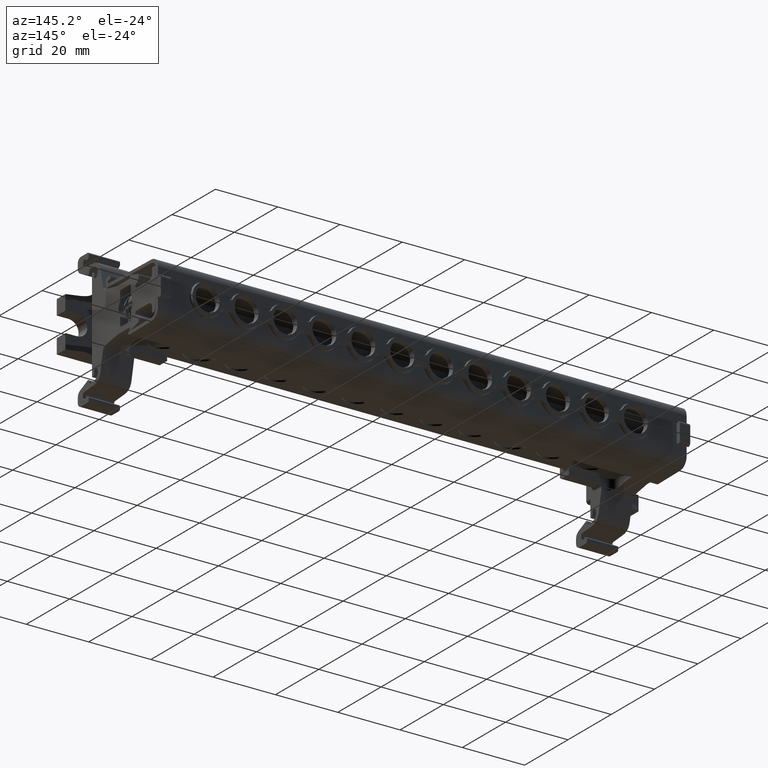
[diagram: clean part render]
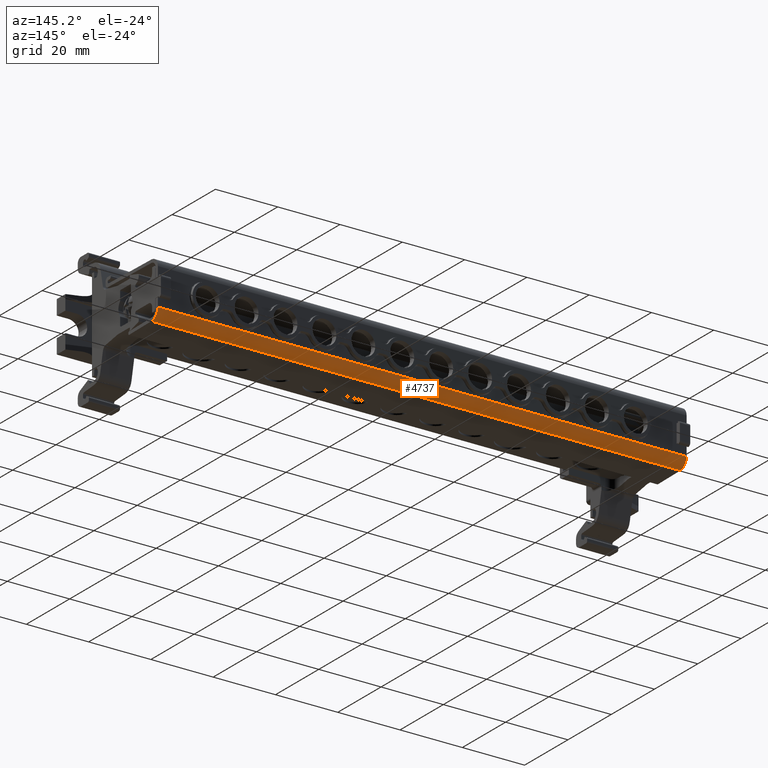
[diagram: same view with one face highlighted and labeled with its STEP entity id]
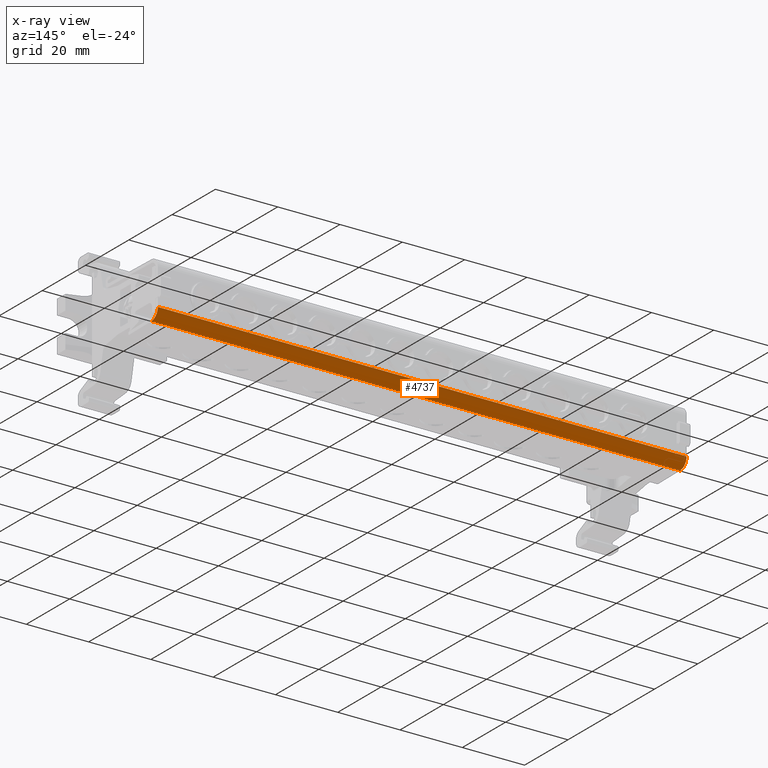
[diagram: x-ray of the same camera — body ghosted, the highlighted face saturated]
A machine part, auxiliary view. The second image highlights one B-rep face of the part: STEP entity #4737.
The next image is the same camera in x-ray: the body ghosted, the highlighted face saturated — about 0% of this face is hidden behind the body in this view.
In plain terms, the highlighted cylindrical surface (edge-blend (fillet) strip) has radius 3 mm, axis along (-1, 0, 0).
Its self-contained STEP definition (entity closure, byte-faithful):
#1128 = EDGE_LOOP ( 'NONE', ( #15021, #15057, #15046, #15062 ) ) ;
#3368 = FACE_OUTER_BOUND ( 'NONE', #1128, .T. ) ;
#3371 = DIRECTION ( 'NONE',  ( -1.000000000000000000, 7.897574933814930700E-015, 3.853197141484226100E-015 ) ) ;
#3380 = DIRECTION ( 'NONE',  ( 4.047688110612550100E-015, -6.107034461466653900E-007, 0.9999999999998134800 ) ) ;
#3394 = CARTESIAN_POINT ( 'NONE',  ( -12.35269769582561700, 71.21282648293207300, 32.27424889606233200 ) ) ;
#3422 = CYLINDRICAL_SURFACE ( 'NONE', #28068, 3.000000000000000000 ) ;
#4737 = ADVANCED_FACE ( 'NONE', ( #3368 ), #3422, .T. ) ;
#7003 = EDGE_CURVE ( 'NONE', #9658, #9677, #8601, .T. ) ;
#7043 = EDGE_CURVE ( 'NONE', #9662, #9693, #8851, .T. ) ;
#8601 = LINE ( 'NONE', #8603, #24884 ) ;
#8603 = CARTESIAN_POINT ( 'NONE',  ( -12.35269769582556900, 74.21282648293207300, 32.27424889606238200 ) ) ;
#8647 = DIRECTION ( 'NONE',  ( -1.000000000000000000, 7.897574933814930700E-015, 3.853197141484226100E-015 ) ) ;
#8836 = DIRECTION ( 'NONE',  ( -1.000000000000000000, 7.897574933814930700E-015, 3.853197141484226100E-015 ) ) ;
#8851 = LINE ( 'NONE', #8869, #24347 ) ;
#8869 = CARTESIAN_POINT ( 'NONE',  ( -12.35269769582561700, 71.26518496709265100, 29.27470583267154000 ) ) ;
#9658 = VERTEX_POINT ( 'NONE', #16880 ) ;
#9662 = VERTEX_POINT ( 'NONE', #16919 ) ;
#9677 = VERTEX_POINT ( 'NONE', #16896 ) ;
#9693 = VERTEX_POINT ( 'NONE', #16866 ) ;
#12134 = EDGE_CURVE ( 'NONE', #9693, #9677, #34550, .T. ) ;
#12199 = EDGE_CURVE ( 'NONE', #9662, #9658, #24151, .T. ) ;
#15021 = ORIENTED_EDGE ( 'NONE', *, *, #7003, .F. ) ;
#15046 = ORIENTED_EDGE ( 'NONE', *, *, #7043, .T. ) ;
#15057 = ORIENTED_EDGE ( 'NONE', *, *, #12199, .F. ) ;
#15062 = ORIENTED_EDGE ( 'NONE', *, *, #12134, .T. ) ;
#16866 = CARTESIAN_POINT ( 'NONE',  ( -124.8476976958256000, 71.26518496709354600, 29.27470583267197300 ) ) ;
#16880 = CARTESIAN_POINT ( 'NONE',  ( 44.94230230417439700, 74.21282648293161800, 32.27424889606216100 ) ) ;
#16896 = CARTESIAN_POINT ( 'NONE',  ( -124.8476976958255600, 74.21282648293296800, 32.27424889606281500 ) ) ;
#16919 = CARTESIAN_POINT ( 'NONE',  ( 44.94230230417435500, 71.26518496709219600, 29.27470583267131900 ) ) ;
#18027 = CARTESIAN_POINT ( 'NONE',  ( -124.8476976958255900, 71.21282648293296800, 32.27424889606276500 ) ) ;
#18030 = DIRECTION ( 'NONE',  ( 9.251858538542962800E-015, 1.000000000000000000, 0.0000000000000000000 ) ) ;
#18058 = DIRECTION ( 'NONE',  ( 1.000000000000000000, -7.931712594431441900E-015, -3.864784542006208600E-015 ) ) ;
#21411 = DIRECTION ( 'NONE',  ( 1.000000000000000000, -7.931712594431441900E-015, -3.864784542006208600E-015 ) ) ;
#21461 = DIRECTION ( 'NONE',  ( 6.938893903907222100E-015, 1.000000000000000000, 0.0000000000000000000 ) ) ;
#21463 = CARTESIAN_POINT ( 'NONE',  ( 44.94230230417436900, 71.21282648293161800, 32.27424889606211200 ) ) ;
#24149 = AXIS2_PLACEMENT_3D ( 'NONE', #21463, #21411, #21461 ) ;
#24151 = CIRCLE ( 'NONE', #24149, 3.000000000000002700 ) ;
#24347 = VECTOR ( 'NONE', #8836, 1000.000000000000000 ) ;
#24884 = VECTOR ( 'NONE', #8647, 1000.000000000000000 ) ;
#28068 = AXIS2_PLACEMENT_3D ( 'NONE', #3394, #3371, #3380 ) ;
#34444 = AXIS2_PLACEMENT_3D ( 'NONE', #18027, #18058, #18030 ) ;
#34550 = CIRCLE ( 'NONE', #34444, 3.000000000000002700 ) ;